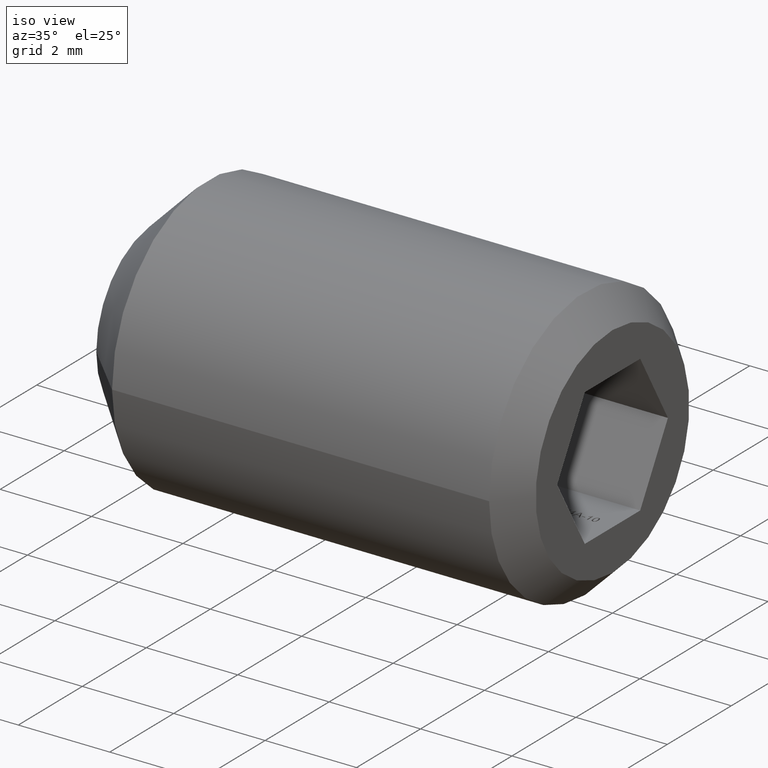
[diagram: clean part render]
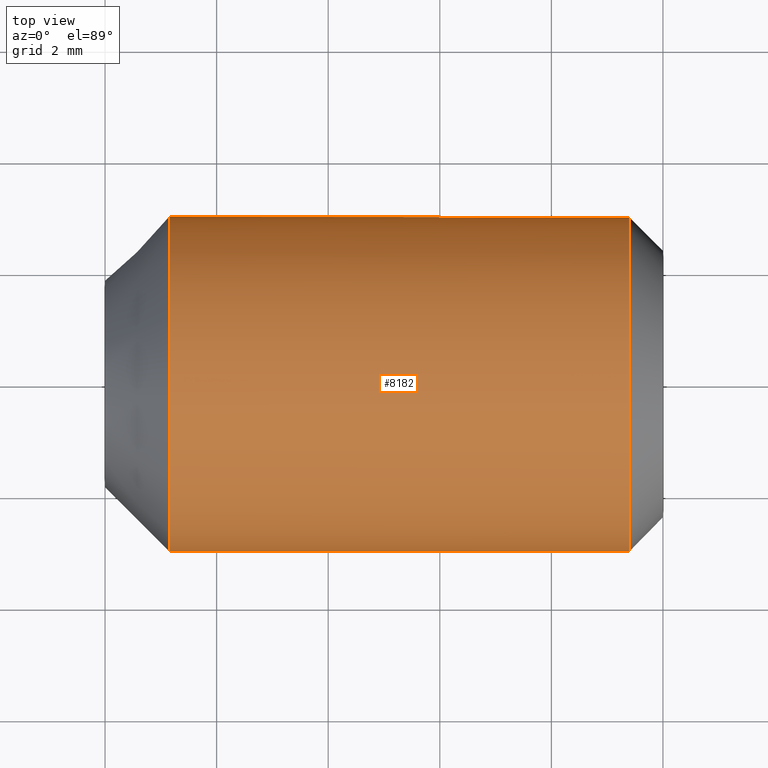
[diagram: tour spotlight — one face highlighted and labeled with its STEP entity id]
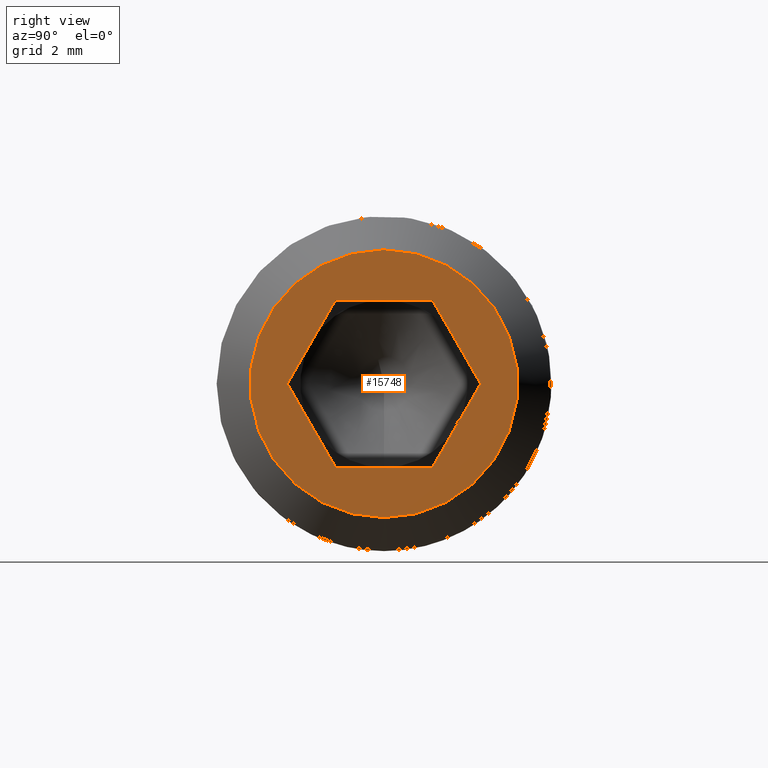
[diagram: tour spotlight — one face highlighted and labeled with its STEP entity id]
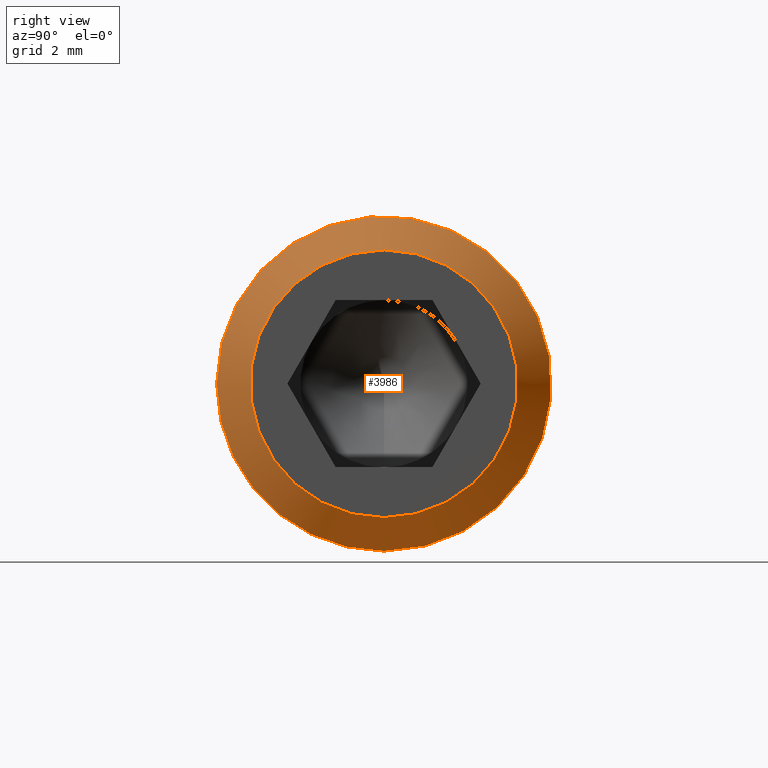
[diagram: tour spotlight — one face highlighted and labeled with its STEP entity id]
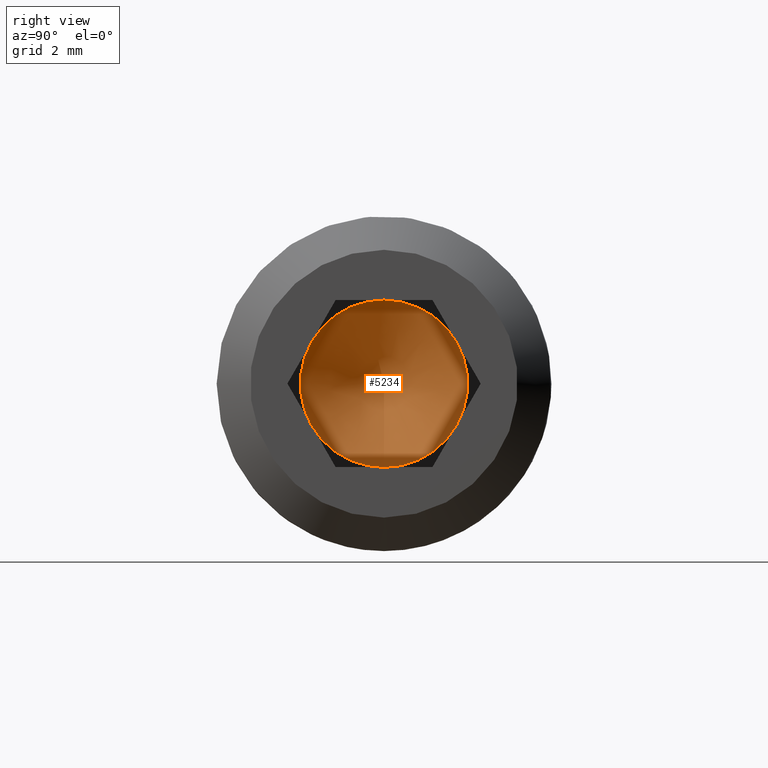
[diagram: tour spotlight — one face highlighted and labeled with its STEP entity id]
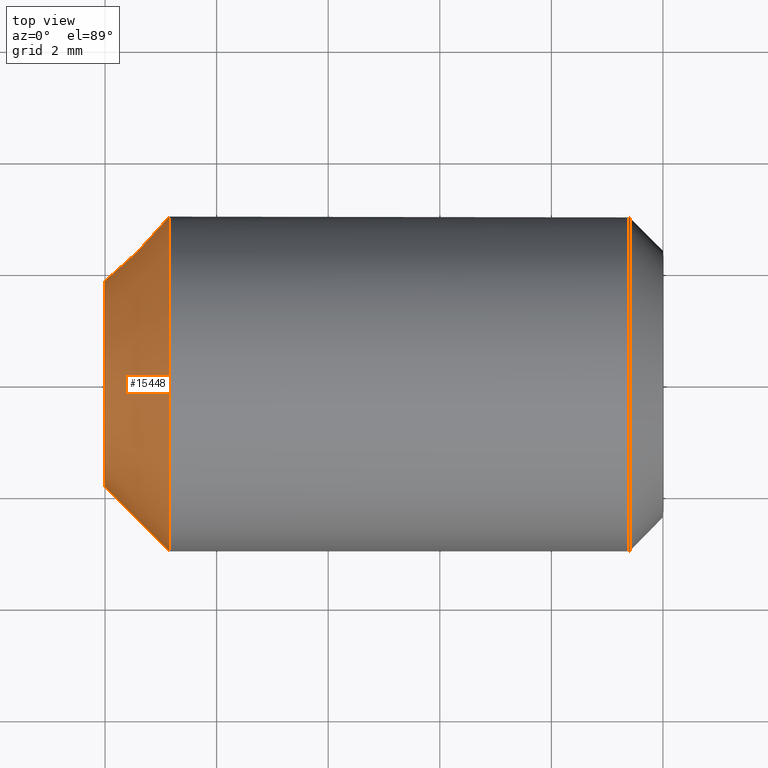
[diagram: tour spotlight — one face highlighted and labeled with its STEP entity id]
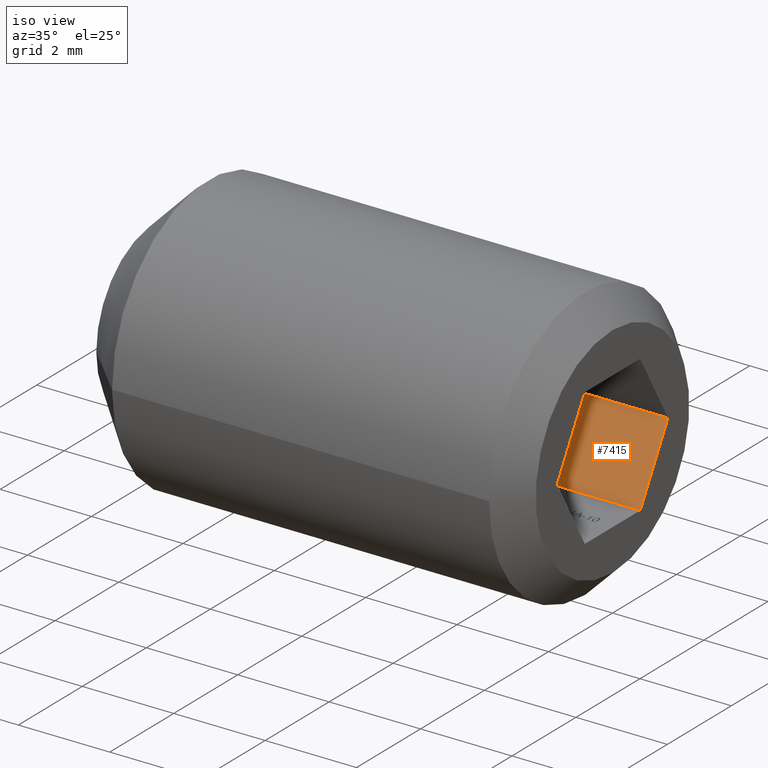
[diagram: tour spotlight — one face highlighted and labeled with its STEP entity id]
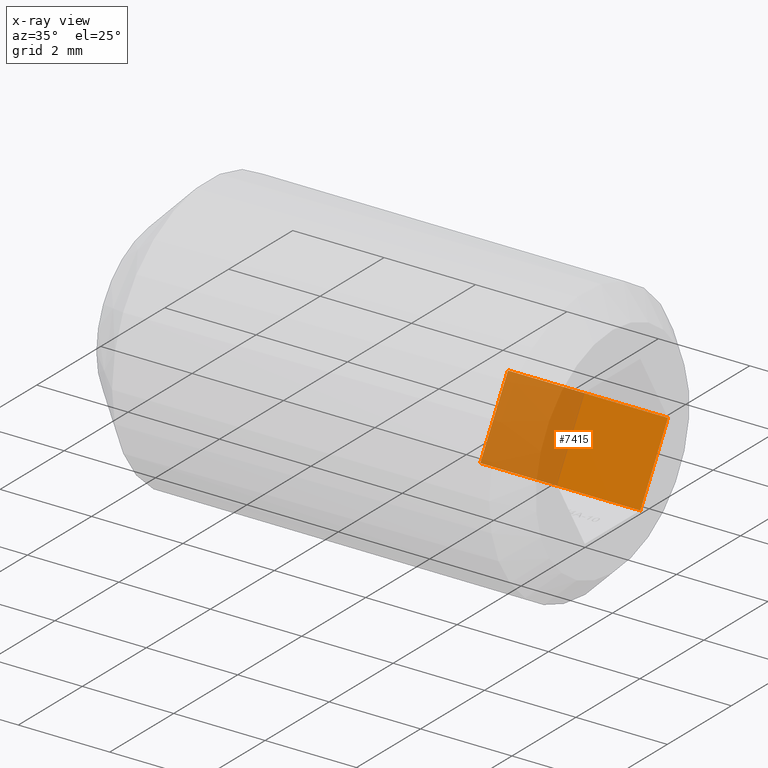
[diagram: x-ray of the same camera — body ghosted, this tour face saturated]
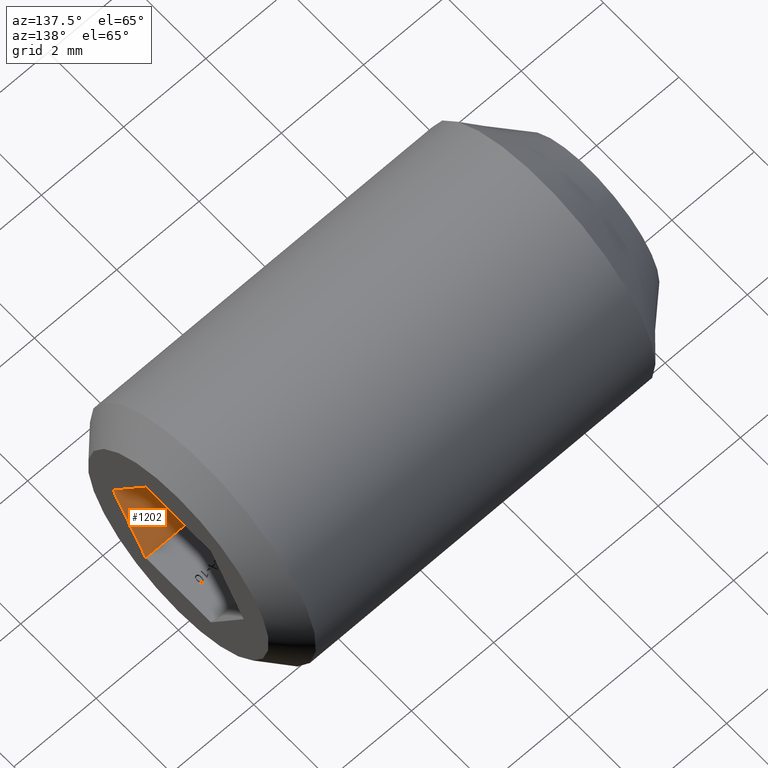
[diagram: tour spotlight — one face highlighted and labeled with its STEP entity id]
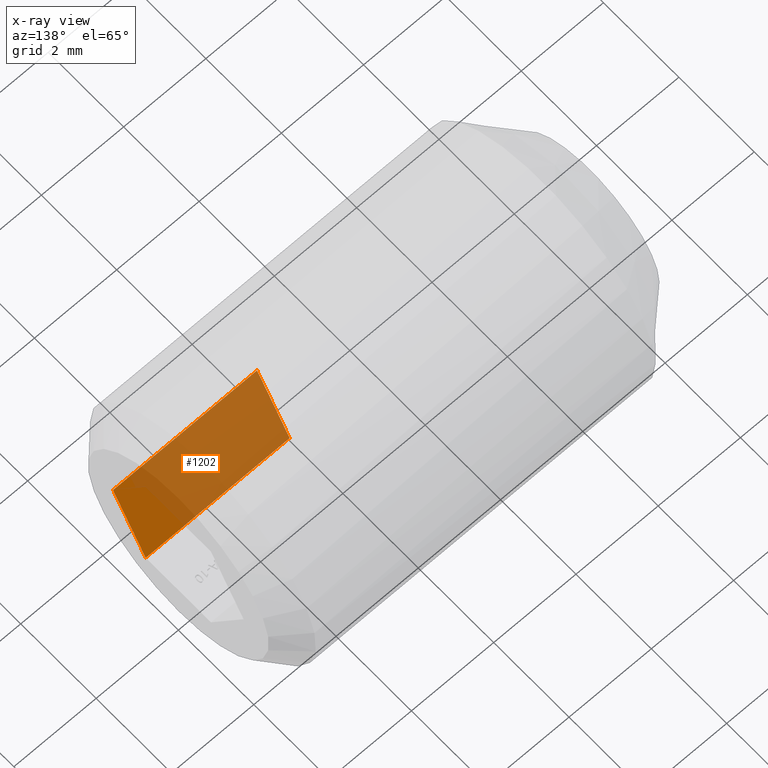
[diagram: x-ray of the same camera — body ghosted, this tour face saturated]
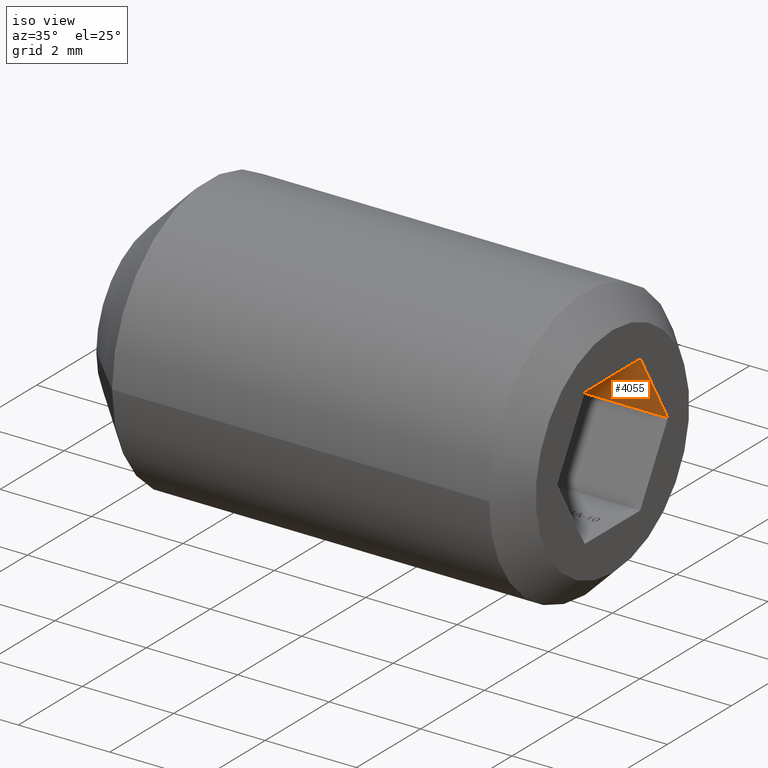
[diagram: tour spotlight — one face highlighted and labeled with its STEP entity id]
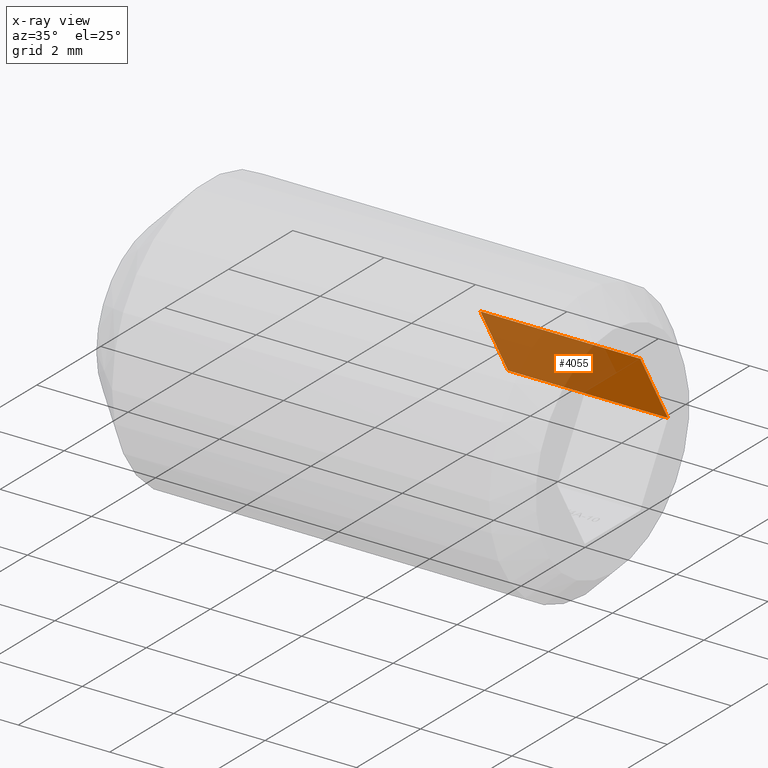
[diagram: x-ray of the same camera — body ghosted, this tour face saturated]
A machine part: a face-by-face anatomy tour. The part has 290 B-rep faces; the first image is the clean iso view, then the 8 largest visible faces are spotlighted one at a time (largest first), each with its STEP entity span.

Face 1 — top view, entity #8182. In plain terms, the highlighted cylindrical surface (bore or boss wall) has radius 3 mm, axis along (-1, -0, -0).
Definition (entity closure, byte-faithful):
#869 = DIRECTION ( 'NONE',  ( 0.0000000000000000000, 0.0000000000000000000, 1.000000000000000000 ) ) ;
#1406 = AXIS2_PLACEMENT_3D ( 'NONE', #16406, #15140, #869 ) ;
#2569 = CARTESIAN_POINT ( 'NONE',  ( 9.399999999999998600, 0.0000000000000000000, 0.0000000000000000000 ) ) ;
#3511 = FACE_OUTER_BOUND ( 'NONE', #14383, .T. ) ;
#3651 = CIRCLE ( 'NONE', #11947, 3.000000000000000400 ) ;
#4031 = EDGE_CURVE ( 'NONE', #8561, #8561, #14637, .T. ) ;
#4314 = CARTESIAN_POINT ( 'NONE',  ( 1.149999999999987900, -4.538988261647295100E-017, 0.0000000000000000000 ) ) ;
#4923 = FACE_OUTER_BOUND ( 'NONE', #16632, .T. ) ;
#5743 = EDGE_CURVE ( 'NONE', #10218, #10218, #3651, .T. ) ;
#6660 = CARTESIAN_POINT ( 'NONE',  ( 1.149999999999987700, -3.000000000000000400, 0.0000000000000000000 ) ) ;
#8182 = ADVANCED_FACE ( 'NONE', ( #4923, #3511 ), #9987, .T. ) ;
#8561 = VERTEX_POINT ( 'NONE', #6660 ) ;
#9987 = CYLINDRICAL_SURFACE ( 'NONE', #1406, 3.000000000000000400 ) ;
#10218 = VERTEX_POINT ( 'NONE', #10469 ) ;
#10469 = CARTESIAN_POINT ( 'NONE',  ( 9.399999999999998600, 0.0000000000000000000, -3.000000000000000400 ) ) ;
#11947 = AXIS2_PLACEMENT_3D ( 'NONE', #2569, #15529, #15694 ) ;
#12130 = ORIENTED_EDGE ( 'NONE', *, *, #4031, .F. ) ;
#12294 = DIRECTION ( 'NONE',  ( -1.000000000000000000, 3.946946314475950600E-017, -0.0000000000000000000 ) ) ;
#14383 = EDGE_LOOP ( 'NONE', ( #12130 ) ) ;
#14637 = CIRCLE ( 'NONE', #14885, 3.000000000000000400 ) ;
#14755 = DIRECTION ( 'NONE',  ( -7.228014483236694600E-017, -1.000000000000000000, 0.0000000000000000000 ) ) ;
#14885 = AXIS2_PLACEMENT_3D ( 'NONE', #4314, #12294, #14755 ) ;
#15140 = DIRECTION ( 'NONE',  ( -1.000000000000000000, -0.0000000000000000000, -0.0000000000000000000 ) ) ;
#15529 = DIRECTION ( 'NONE',  ( -1.000000000000000000, 0.0000000000000000000, 0.0000000000000000000 ) ) ;
#15694 = DIRECTION ( 'NONE',  ( 0.0000000000000000000, 0.0000000000000000000, -1.000000000000000000 ) ) ;
#16114 = ORIENTED_EDGE ( 'NONE', *, *, #5743, .T. ) ;
#16406 = CARTESIAN_POINT ( 'NONE',  ( 10.00000000000000000, 0.0000000000000000000, 0.0000000000000000000 ) ) ;
#16632 = EDGE_LOOP ( 'NONE', ( #16114 ) ) ;

Face 2 — right view, entity #15748. In plain terms, the highlighted planar face has unit normal (1, 0, 0).
Definition (entity closure, byte-faithful):
#200 = AXIS2_PLACEMENT_3D ( 'NONE', #2167, #13984, #7428 ) ;
#248 = CARTESIAN_POINT ( 'NONE',  ( 10.00000000000000000, -0.8660254037844399300, -1.499999999999999600 ) ) ;
#782 = DIRECTION ( 'NONE',  ( 0.0000000000000000000, -0.4999999999999998900, 0.8660254037844387100 ) ) ;
#1380 = LINE ( 'NONE', #11024, #12333 ) ;
#1824 = EDGE_CURVE ( 'NONE', #8392, #12020, #9368, .T. ) ;
#2167 = CARTESIAN_POINT ( 'NONE',  ( 10.00000000000000000, 0.0000000000000000000, 0.0000000000000000000 ) ) ;
#2492 = ORIENTED_EDGE ( 'NONE', *, *, #9394, .F. ) ;
#2545 = VECTOR ( 'NONE', #6670, 1000.000000000000200 ) ;
#2905 = VERTEX_POINT ( 'NONE', #10537 ) ;
#3194 = DIRECTION ( 'NONE',  ( 0.0000000000000000000, -1.000000000000000000, 0.0000000000000000000 ) ) ;
#3426 = LINE ( 'NONE', #6577, #13365 ) ;
#3845 = VECTOR ( 'NONE', #8824, 1000.000000000000100 ) ;
#4387 = VERTEX_POINT ( 'NONE', #248 ) ;
#4872 = VECTOR ( 'NONE', #10910, 1000.000000000000000 ) ;
#5024 = ORIENTED_EDGE ( 'NONE', *, *, #13210, .F. ) ;
#5373 = FACE_BOUND ( 'NONE', #8840, .T. ) ;
#5690 = DIRECTION ( 'NONE',  ( 1.000000000000000000, 0.0000000000000000000, 0.0000000000000000000 ) ) ;
#5978 = ORIENTED_EDGE ( 'NONE', *, *, #11412, .T. ) ;
#6577 = CARTESIAN_POINT ( 'NONE',  ( 10.00000000000000000, -0.8660254037844398200, 1.500000000000000000 ) ) ;
#6670 = DIRECTION ( 'NONE',  ( 0.0000000000000000000, 0.4999999999999998900, 0.8660254037844386000 ) ) ;
#7428 = DIRECTION ( 'NONE',  ( 0.0000000000000000000, 0.0000000000000000000, -1.000000000000000000 ) ) ;
#7482 = LINE ( 'NONE', #15750, #4872 ) ;
#7659 = LINE ( 'NONE', #11302, #3845 ) ;
#7722 = CARTESIAN_POINT ( 'NONE',  ( 10.00000000000000000, 0.8660254037844387100, -1.500000000000000000 ) ) ;
#8041 = CARTESIAN_POINT ( 'NONE',  ( 10.00000000000000000, 1.732050807568877400, 9.237883159404563300E-017 ) ) ;
#8392 = VERTEX_POINT ( 'NONE', #8041 ) ;
#8537 = CARTESIAN_POINT ( 'NONE',  ( 10.00000000000000000, 1.732050807568877400, 9.237883159404563300E-017 ) ) ;
#8824 = DIRECTION ( 'NONE',  ( 0.0000000000000000000, 0.4999999999999997200, -0.8660254037844387100 ) ) ;
#8840 = EDGE_LOOP ( 'NONE', ( #14143, #15159, #15616, #5024, #2492, #9239 ) ) ;
#9239 = ORIENTED_EDGE ( 'NONE', *, *, #10602, .F. ) ;
#9241 = DIRECTION ( 'NONE',  ( 0.0000000000000000000, -0.5000000000000001100, -0.8660254037844386000 ) ) ;
#9368 = LINE ( 'NONE', #8537, #11217 ) ;
#9394 = EDGE_CURVE ( 'NONE', #4387, #9677, #7482, .T. ) ;
#9677 = VERTEX_POINT ( 'NONE', #7722 ) ;
#10057 = VERTEX_POINT ( 'NONE', #16618 ) ;
#10302 = EDGE_CURVE ( 'NONE', #10057, #12960, #3426, .T. ) ;
#10537 = CARTESIAN_POINT ( 'NONE',  ( 10.00000000000000000, 0.0000000000000000000, -2.400000000000001200 ) ) ;
#10602 = EDGE_CURVE ( 'NONE', #12960, #4387, #7659, .T. ) ;
#10910 = DIRECTION ( 'NONE',  ( 0.0000000000000000000, 1.000000000000000000, -2.503857664561930400E-016 ) ) ;
#11024 = CARTESIAN_POINT ( 'NONE',  ( 10.00000000000000000, 0.8660254037844390400, 1.500000000000000000 ) ) ;
#11217 = VECTOR ( 'NONE', #782, 1000.000000000000000 ) ;
#11302 = CARTESIAN_POINT ( 'NONE',  ( 10.00000000000000000, -1.732050807568878300, 8.662204744352595200E-016 ) ) ;
#11412 = EDGE_CURVE ( 'NONE', #2905, #2905, #13559, .T. ) ;
#11477 = EDGE_CURVE ( 'NONE', #12020, #10057, #1380, .T. ) ;
#12020 = VERTEX_POINT ( 'NONE', #15783 ) ;
#12163 = CARTESIAN_POINT ( 'NONE',  ( 10.00000000000000000, 0.0000000000000000000, 0.0000000000000000000 ) ) ;
#12333 = VECTOR ( 'NONE', #3194, 1000.000000000000000 ) ;
#12562 = PLANE ( 'NONE',  #200 ) ;
#12659 = FACE_OUTER_BOUND ( 'NONE', #13561, .T. ) ;
#12960 = VERTEX_POINT ( 'NONE', #14208 ) ;
#13210 = EDGE_CURVE ( 'NONE', #9677, #8392, #15569, .T. ) ;
#13365 = VECTOR ( 'NONE', #9241, 1000.000000000000000 ) ;
#13559 = CIRCLE ( 'NONE', #16291, 2.400000000000001200 ) ;
#13561 = EDGE_LOOP ( 'NONE', ( #5978 ) ) ;
#13984 = DIRECTION ( 'NONE',  ( 1.000000000000000000, 0.0000000000000000000, 0.0000000000000000000 ) ) ;
#14143 = ORIENTED_EDGE ( 'NONE', *, *, #10302, .F. ) ;
#14208 = CARTESIAN_POINT ( 'NONE',  ( 10.00000000000000000, -1.732050807568878300, 9.757819552369539900E-016 ) ) ;
#14788 = DIRECTION ( 'NONE',  ( 0.0000000000000000000, 0.0000000000000000000, -1.000000000000000000 ) ) ;
#15159 = ORIENTED_EDGE ( 'NONE', *, *, #11477, .F. ) ;
#15331 = CARTESIAN_POINT ( 'NONE',  ( 10.00000000000000000, 0.8660254037844387100, -1.500000000000000000 ) ) ;
#15569 = LINE ( 'NONE', #15331, #2545 ) ;
#15616 = ORIENTED_EDGE ( 'NONE', *, *, #1824, .F. ) ;
#15748 = ADVANCED_FACE ( 'NONE', ( #5373, #12659 ), #12562, .T. ) ;
#15750 = CARTESIAN_POINT ( 'NONE',  ( 10.00000000000000000, -0.8660254037844399300, -1.499999999999999600 ) ) ;
#15783 = CARTESIAN_POINT ( 'NONE',  ( 10.00000000000000000, 0.8660254037844390400, 1.500000000000000000 ) ) ;
#16291 = AXIS2_PLACEMENT_3D ( 'NONE', #12163, #5690, #14788 ) ;
#16618 = CARTESIAN_POINT ( 'NONE',  ( 10.00000000000000000, -0.8660254037844398200, 1.500000000000000000 ) ) ;

Face 3 — right view, entity #3986. In plain terms, the highlighted conical surface has half-angle 45 deg.
Definition (entity closure, byte-faithful):
#498 = ORIENTED_EDGE ( 'NONE', *, *, #11412, .F. ) ;
#2569 = CARTESIAN_POINT ( 'NONE',  ( 9.399999999999998600, 0.0000000000000000000, 0.0000000000000000000 ) ) ;
#2905 = VERTEX_POINT ( 'NONE', #10537 ) ;
#3085 = CARTESIAN_POINT ( 'NONE',  ( 10.00000000000000000, 0.0000000000000000000, 0.0000000000000000000 ) ) ;
#3651 = CIRCLE ( 'NONE', #11947, 3.000000000000000400 ) ;
#3880 = CONICAL_SURFACE ( 'NONE', #8309, 2.400000000000001200, 0.7853981633974465000 ) ;
#3986 = ADVANCED_FACE ( 'NONE', ( #8708, #7896 ), #3880, .T. ) ;
#5518 = DIRECTION ( 'NONE',  ( 0.0000000000000000000, 0.0000000000000000000, 1.000000000000000000 ) ) ;
#5690 = DIRECTION ( 'NONE',  ( 1.000000000000000000, 0.0000000000000000000, 0.0000000000000000000 ) ) ;
#5743 = EDGE_CURVE ( 'NONE', #10218, #10218, #3651, .T. ) ;
#6805 = EDGE_LOOP ( 'NONE', ( #9450 ) ) ;
#7896 = FACE_BOUND ( 'NONE', #13259, .T. ) ;
#8117 = DIRECTION ( 'NONE',  ( -1.000000000000000000, 0.0000000000000000000, 0.0000000000000000000 ) ) ;
#8309 = AXIS2_PLACEMENT_3D ( 'NONE', #3085, #8117, #5518 ) ;
#8708 = FACE_OUTER_BOUND ( 'NONE', #6805, .T. ) ;
#9450 = ORIENTED_EDGE ( 'NONE', *, *, #5743, .F. ) ;
#10218 = VERTEX_POINT ( 'NONE', #10469 ) ;
#10469 = CARTESIAN_POINT ( 'NONE',  ( 9.399999999999998600, 0.0000000000000000000, -3.000000000000000400 ) ) ;
#10537 = CARTESIAN_POINT ( 'NONE',  ( 10.00000000000000000, 0.0000000000000000000, -2.400000000000001200 ) ) ;
#11412 = EDGE_CURVE ( 'NONE', #2905, #2905, #13559, .T. ) ;
#11947 = AXIS2_PLACEMENT_3D ( 'NONE', #2569, #15529, #15694 ) ;
#12163 = CARTESIAN_POINT ( 'NONE',  ( 10.00000000000000000, 0.0000000000000000000, 0.0000000000000000000 ) ) ;
#13259 = EDGE_LOOP ( 'NONE', ( #498 ) ) ;
#13559 = CIRCLE ( 'NONE', #16291, 2.400000000000001200 ) ;
#14788 = DIRECTION ( 'NONE',  ( 0.0000000000000000000, 0.0000000000000000000, -1.000000000000000000 ) ) ;
#15529 = DIRECTION ( 'NONE',  ( -1.000000000000000000, 0.0000000000000000000, 0.0000000000000000000 ) ) ;
#15694 = DIRECTION ( 'NONE',  ( 0.0000000000000000000, 0.0000000000000000000, -1.000000000000000000 ) ) ;
#16291 = AXIS2_PLACEMENT_3D ( 'NONE', #12163, #5690, #14788 ) ;

Face 4 — right view, entity #5234. In plain terms, the highlighted conical surface has half-angle 59 deg.
Definition (entity closure, byte-faithful):
#100 = VERTEX_POINT ( 'NONE', #8539 ) ;
#152 = ORIENTED_EDGE ( 'NONE', *, *, #1049, .T. ) ;
#282 = EDGE_LOOP ( 'NONE', ( #3161, #1786, #3121, #10118, #12741, #152 ) ) ;
#1049 = EDGE_CURVE ( 'NONE', #11099, #16628, #11002, .T. ) ;
#1083 = CIRCLE ( 'NONE', #7816, 1.499999999999999600 ) ;
#1786 = ORIENTED_EDGE ( 'NONE', *, *, #7435, .T. ) ;
#1803 = AXIS2_PLACEMENT_3D ( 'NONE', #7640, #9129, #6472 ) ;
#1906 = VERTEX_POINT ( 'NONE', #5021 ) ;
#2711 = DIRECTION ( 'NONE',  ( 1.000000000000000000, -0.0000000000000000000, -1.224646799147351200E-016 ) ) ;
#2780 = EDGE_CURVE ( 'NONE', #14139, #100, #9755, .T. ) ;
#3121 = ORIENTED_EDGE ( 'NONE', *, *, #2780, .T. ) ;
#3161 = ORIENTED_EDGE ( 'NONE', *, *, #7439, .T. ) ;
#3608 = DIRECTION ( 'NONE',  ( 1.000000000000000000, -0.0000000000000000000, -1.224646799147351200E-016 ) ) ;
#4045 = CARTESIAN_POINT ( 'NONE',  ( 6.500000000000000900, 1.299038105676658000, 0.7499999999999990000 ) ) ;
#4083 = DIRECTION ( 'NONE',  ( 1.000000000000000000, 0.0000000000000000000, 0.0000000000000000000 ) ) ;
#4714 = DIRECTION ( 'NONE',  ( 1.000000000000000000, 0.0000000000000000000, 0.0000000000000000000 ) ) ;
#5021 = CARTESIAN_POINT ( 'NONE',  ( 6.500000000000000900, 1.299038105676657800, -0.7500000000000006700 ) ) ;
#5234 = ADVANCED_FACE ( 'NONE', ( #8485 ), #8695, .F. ) ;
#5289 = EDGE_CURVE ( 'NONE', #100, #9621, #15030, .T. ) ;
#5619 = DIRECTION ( 'NONE',  ( 0.0000000000000000000, 0.0000000000000000000, -1.000000000000000000 ) ) ;
#6145 = CARTESIAN_POINT ( 'NONE',  ( 6.500000000000000900, 0.0000000000000000000, -7.955819008010142500E-016 ) ) ;
#6472 = DIRECTION ( 'NONE',  ( 0.0000000000000000000, 0.0000000000000000000, -1.000000000000000000 ) ) ;
#7435 = EDGE_CURVE ( 'NONE', #1906, #14139, #9894, .T. ) ;
#7439 = EDGE_CURVE ( 'NONE', #16628, #1906, #11338, .T. ) ;
#7475 = CARTESIAN_POINT ( 'NONE',  ( 6.500000000000000900, 0.0000000000000000000, -7.955819008010142500E-016 ) ) ;
#7640 = CARTESIAN_POINT ( 'NONE',  ( 6.500000000000000900, 0.0000000000000000000, -7.955819008010142500E-016 ) ) ;
#7778 = CARTESIAN_POINT ( 'NONE',  ( 6.500000000000000900, 0.0000000000000000000, -7.955819008010142500E-016 ) ) ;
#7816 = AXIS2_PLACEMENT_3D ( 'NONE', #7778, #4083, #10413 ) ;
#7864 = CARTESIAN_POINT ( 'NONE',  ( 6.500000000000000900, 0.0000000000000000000, -4.898587196589412800E-016 ) ) ;
#8485 = FACE_OUTER_BOUND ( 'NONE', #282, .T. ) ;
#8539 = CARTESIAN_POINT ( 'NONE',  ( 6.500000000000000900, 0.0000000000000000000, 1.499999999999999300 ) ) ;
#8618 = DIRECTION ( 'NONE',  ( 0.0000000000000000000, 0.0000000000000000000, -1.000000000000000000 ) ) ;
#8695 = CONICAL_SURFACE ( 'NONE', #9100, 1.499999999999999800, 1.029744258676650300 ) ;
#8898 = AXIS2_PLACEMENT_3D ( 'NONE', #6145, #16623, #10125 ) ;
#9100 = AXIS2_PLACEMENT_3D ( 'NONE', #7864, #2711, #15679 ) ;
#9129 = DIRECTION ( 'NONE',  ( 1.000000000000000000, 0.0000000000000000000, 0.0000000000000000000 ) ) ;
#9621 = VERTEX_POINT ( 'NONE', #11516 ) ;
#9755 = CIRCLE ( 'NONE', #11184, 1.499999999999999600 ) ;
#9784 = CARTESIAN_POINT ( 'NONE',  ( 6.500000000000000900, -3.755786496842894100E-016, -1.500000000000000200 ) ) ;
#9894 = CIRCLE ( 'NONE', #8898, 1.499999999999999600 ) ;
#10118 = ORIENTED_EDGE ( 'NONE', *, *, #5289, .T. ) ;
#10125 = DIRECTION ( 'NONE',  ( 0.0000000000000000000, 0.0000000000000000000, -1.000000000000000000 ) ) ;
#10413 = DIRECTION ( 'NONE',  ( 0.0000000000000000000, 0.0000000000000000000, -1.000000000000000000 ) ) ;
#11002 = CIRCLE ( 'NONE', #15214, 1.499999999999999600 ) ;
#11099 = VERTEX_POINT ( 'NONE', #15538 ) ;
#11184 = AXIS2_PLACEMENT_3D ( 'NONE', #15153, #11300, #14930 ) ;
#11300 = DIRECTION ( 'NONE',  ( 1.000000000000000000, 0.0000000000000000000, 0.0000000000000000000 ) ) ;
#11331 = CARTESIAN_POINT ( 'NONE',  ( 6.500000000000000900, 0.0000000000000000000, -4.898587196589412800E-016 ) ) ;
#11338 = CIRCLE ( 'NONE', #13026, 1.499999999999999800 ) ;
#11516 = CARTESIAN_POINT ( 'NONE',  ( 6.500000000000000900, -1.299038105676657800, 0.7499999999999993300 ) ) ;
#12741 = ORIENTED_EDGE ( 'NONE', *, *, #16873, .T. ) ;
#13026 = AXIS2_PLACEMENT_3D ( 'NONE', #11331, #3608, #8618 ) ;
#14139 = VERTEX_POINT ( 'NONE', #4045 ) ;
#14930 = DIRECTION ( 'NONE',  ( 0.0000000000000000000, 0.0000000000000000000, -1.000000000000000000 ) ) ;
#15030 = CIRCLE ( 'NONE', #1803, 1.499999999999999600 ) ;
#15153 = CARTESIAN_POINT ( 'NONE',  ( 6.500000000000000900, 0.0000000000000000000, -7.955819008010142500E-016 ) ) ;
#15214 = AXIS2_PLACEMENT_3D ( 'NONE', #7475, #4714, #5619 ) ;
#15538 = CARTESIAN_POINT ( 'NONE',  ( 6.500000000000000900, -1.299038105676658700, -0.7500000000000006700 ) ) ;
#15679 = DIRECTION ( 'NONE',  ( 0.0000000000000000000, 0.0000000000000000000, -1.000000000000000000 ) ) ;
#16623 = DIRECTION ( 'NONE',  ( 1.000000000000000000, 0.0000000000000000000, 0.0000000000000000000 ) ) ;
#16628 = VERTEX_POINT ( 'NONE', #9784 ) ;
#16873 = EDGE_CURVE ( 'NONE', #9621, #11099, #1083, .T. ) ;

Face 5 — top view, entity #15448. In plain terms, the highlighted conical surface has half-angle 45 deg.
Definition (entity closure, byte-faithful):
#1046 = DIRECTION ( 'NONE',  ( 3.946946314475950600E-017, 1.000000000000000000, 0.0000000000000000000 ) ) ;
#1522 = AXIS2_PLACEMENT_3D ( 'NONE', #3623, #14172, #1046 ) ;
#2331 = ORIENTED_EDGE ( 'NONE', *, *, #4031, .T. ) ;
#3623 = CARTESIAN_POINT ( 'NONE',  ( -5.464880483059479300E-017, 2.156958988166316400E-033, 0.0000000000000000000 ) ) ;
#3817 = DIRECTION ( 'NONE',  ( -3.946946314475950600E-017, -1.000000000000000000, 0.0000000000000000000 ) ) ;
#4031 = EDGE_CURVE ( 'NONE', #8561, #8561, #14637, .T. ) ;
#4192 = CARTESIAN_POINT ( 'NONE',  ( -1.276673116483998800E-016, -1.850000000000000100, 0.0000000000000000000 ) ) ;
#4314 = CARTESIAN_POINT ( 'NONE',  ( 1.149999999999987900, -4.538988261647295100E-017, 0.0000000000000000000 ) ) ;
#4964 = CONICAL_SURFACE ( 'NONE', #1522, 1.850000000000000100, 0.7853981633974538300 ) ;
#5165 = DIRECTION ( 'NONE',  ( -1.000000000000000000, 3.946946314475950600E-017, -0.0000000000000000000 ) ) ;
#6660 = CARTESIAN_POINT ( 'NONE',  ( 1.149999999999987700, -3.000000000000000400, 0.0000000000000000000 ) ) ;
#6837 = ORIENTED_EDGE ( 'NONE', *, *, #11819, .F. ) ;
#6951 = EDGE_LOOP ( 'NONE', ( #6837 ) ) ;
#8561 = VERTEX_POINT ( 'NONE', #6660 ) ;
#9003 = CARTESIAN_POINT ( 'NONE',  ( -5.464880483059479300E-017, 2.156958988166316400E-033, 0.0000000000000000000 ) ) ;
#9010 = EDGE_LOOP ( 'NONE', ( #2331 ) ) ;
#10445 = FACE_OUTER_BOUND ( 'NONE', #9010, .T. ) ;
#10533 = AXIS2_PLACEMENT_3D ( 'NONE', #9003, #5165, #3817 ) ;
#11738 = CIRCLE ( 'NONE', #10533, 1.850000000000000100 ) ;
#11819 = EDGE_CURVE ( 'NONE', #14084, #14084, #11738, .T. ) ;
#12294 = DIRECTION ( 'NONE',  ( -1.000000000000000000, 3.946946314475950600E-017, -0.0000000000000000000 ) ) ;
#13077 = FACE_BOUND ( 'NONE', #6951, .T. ) ;
#14084 = VERTEX_POINT ( 'NONE', #4192 ) ;
#14172 = DIRECTION ( 'NONE',  ( 1.000000000000000000, -3.946946314475950600E-017, 0.0000000000000000000 ) ) ;
#14637 = CIRCLE ( 'NONE', #14885, 3.000000000000000400 ) ;
#14755 = DIRECTION ( 'NONE',  ( -7.228014483236694600E-017, -1.000000000000000000, 0.0000000000000000000 ) ) ;
#14885 = AXIS2_PLACEMENT_3D ( 'NONE', #4314, #12294, #14755 ) ;
#15448 = ADVANCED_FACE ( 'NONE', ( #10445, #13077 ), #4964, .T. ) ;

Face 6 — iso view, entity #7415. An x-ray twin of the same camera follows (body ghosted, this face saturated) — the face is partly hidden behind the body. In plain terms, the highlighted planar face has unit normal (0, 0.866, -0.5).
Definition (entity closure, byte-faithful):
#133 = LINE ( 'NONE', #12127, #9667 ) ;
#746 = DIRECTION ( 'NONE',  ( 0.0000000000000000000, 0.4999999999999998900, 0.8660254037844386000 ) ) ;
#1250 = EDGE_CURVE ( 'NONE', #5058, #9677, #14661, .T. ) ;
#1456 = DIRECTION ( 'NONE',  ( 0.0000000000000000000, 0.4999999999999998900, 0.8660254037844386000 ) ) ;
#1906 = VERTEX_POINT ( 'NONE', #5021 ) ;
#2545 = VECTOR ( 'NONE', #6670, 1000.000000000000200 ) ;
#2732 = CARTESIAN_POINT ( 'NONE',  ( 6.500000000000000900, 0.8660254037844387100, -1.500000000000000200 ) ) ;
#3781 = EDGE_LOOP ( 'NONE', ( #8416, #10410, #6170, #4180, #12940 ) ) ;
#4180 = ORIENTED_EDGE ( 'NONE', *, *, #6703, .F. ) ;
#4388 = CARTESIAN_POINT ( 'NONE',  ( 6.500000000000000900, 0.8660254037844387100, -1.500000000000000200 ) ) ;
#4449 = VECTOR ( 'NONE', #8910, 1000.000000000000200 ) ;
#4623 = CARTESIAN_POINT ( 'NONE',  ( 6.500000000000000900, 0.8660254037844387100, -1.500000000000000200 ) ) ;
#5021 = CARTESIAN_POINT ( 'NONE',  ( 6.500000000000000900, 1.299038105676657800, -0.7500000000000006700 ) ) ;
#5042 = VECTOR ( 'NONE', #1456, 1000.000000000000200 ) ;
#5058 = VERTEX_POINT ( 'NONE', #4388 ) ;
#5222 = CARTESIAN_POINT ( 'NONE',  ( 6.500000000000000900, 0.8660254037844387100, -1.500000000000000200 ) ) ;
#5443 = DIRECTION ( 'NONE',  ( 1.000000000000000000, -0.0000000000000000000, 6.123031769111886300E-017 ) ) ;
#6170 = ORIENTED_EDGE ( 'NONE', *, *, #10195, .F. ) ;
#6670 = DIRECTION ( 'NONE',  ( 0.0000000000000000000, 0.4999999999999998900, 0.8660254037844386000 ) ) ;
#6703 = EDGE_CURVE ( 'NONE', #5058, #1906, #15412, .T. ) ;
#7415 = ADVANCED_FACE ( 'NONE', ( #10311 ), #9718, .F. ) ;
#7722 = CARTESIAN_POINT ( 'NONE',  ( 10.00000000000000000, 0.8660254037844387100, -1.500000000000000000 ) ) ;
#7868 = LINE ( 'NONE', #10443, #4449 ) ;
#8041 = CARTESIAN_POINT ( 'NONE',  ( 10.00000000000000000, 1.732050807568877400, 9.237883159404563300E-017 ) ) ;
#8342 = DIRECTION ( 'NONE',  ( 3.061515884555943800E-017, 0.8660254037844387100, -0.4999999999999999400 ) ) ;
#8392 = VERTEX_POINT ( 'NONE', #8041 ) ;
#8416 = ORIENTED_EDGE ( 'NONE', *, *, #13210, .T. ) ;
#8688 = CARTESIAN_POINT ( 'NONE',  ( 6.500000000000000900, 1.732050807568877400, -1.219272803248704100E-016 ) ) ;
#8910 = DIRECTION ( 'NONE',  ( 0.0000000000000000000, 0.4999999999999998900, 0.8660254037844386000 ) ) ;
#9667 = VECTOR ( 'NONE', #5443, 1000.000000000000000 ) ;
#9677 = VERTEX_POINT ( 'NONE', #7722 ) ;
#9718 = PLANE ( 'NONE',  #16770 ) ;
#10195 = EDGE_CURVE ( 'NONE', #1906, #15651, #7868, .T. ) ;
#10311 = FACE_OUTER_BOUND ( 'NONE', #3781, .T. ) ;
#10410 = ORIENTED_EDGE ( 'NONE', *, *, #12016, .F. ) ;
#10443 = CARTESIAN_POINT ( 'NONE',  ( 6.500000000000000900, 0.8660254037844387100, -1.500000000000000200 ) ) ;
#11209 = VECTOR ( 'NONE', #11832, 1000.000000000000000 ) ;
#11832 = DIRECTION ( 'NONE',  ( 1.000000000000000000, -0.0000000000000000000, 6.123031769111886300E-017 ) ) ;
#12016 = EDGE_CURVE ( 'NONE', #15651, #8392, #133, .T. ) ;
#12127 = CARTESIAN_POINT ( 'NONE',  ( 6.500000000000000900, 1.732050807568877400, -1.219272803248704100E-016 ) ) ;
#12940 = ORIENTED_EDGE ( 'NONE', *, *, #1250, .T. ) ;
#13210 = EDGE_CURVE ( 'NONE', #9677, #8392, #15569, .T. ) ;
#14661 = LINE ( 'NONE', #2732, #11209 ) ;
#15331 = CARTESIAN_POINT ( 'NONE',  ( 10.00000000000000000, 0.8660254037844387100, -1.500000000000000000 ) ) ;
#15412 = LINE ( 'NONE', #5222, #5042 ) ;
#15569 = LINE ( 'NONE', #15331, #2545 ) ;
#15651 = VERTEX_POINT ( 'NONE', #8688 ) ;
#16770 = AXIS2_PLACEMENT_3D ( 'NONE', #4623, #8342, #746 ) ;

Face 7 — auxiliary view, entity #1202. An x-ray twin of the same camera follows (body ghosted, this face saturated) — the face is partly hidden behind the body. In plain terms, the highlighted planar face has unit normal (0, -0.866, -0.5).
Definition (entity closure, byte-faithful):
#42 = ORIENTED_EDGE ( 'NONE', *, *, #10602, .T. ) ;
#248 = CARTESIAN_POINT ( 'NONE',  ( 10.00000000000000000, -0.8660254037844399300, -1.499999999999999600 ) ) ;
#1202 = ADVANCED_FACE ( 'NONE', ( #16518 ), #4183, .F. ) ;
#1539 = CARTESIAN_POINT ( 'NONE',  ( 6.500000000000000900, -1.732050807568878300, 6.519143625163435000E-016 ) ) ;
#1714 = VERTEX_POINT ( 'NONE', #16269 ) ;
#2391 = VECTOR ( 'NONE', #3293, 1000.000000000000100 ) ;
#2590 = LINE ( 'NONE', #4462, #12945 ) ;
#2961 = DIRECTION ( 'NONE',  ( 0.0000000000000000000, 0.4999999999999997200, -0.8660254037844388200 ) ) ;
#2974 = CARTESIAN_POINT ( 'NONE',  ( 6.500000000000000900, -1.732050807568878300, 6.519143625163435000E-016 ) ) ;
#3185 = LINE ( 'NONE', #6620, #4816 ) ;
#3293 = DIRECTION ( 'NONE',  ( 0.0000000000000000000, 0.4999999999999997200, -0.8660254037844387100 ) ) ;
#3845 = VECTOR ( 'NONE', #8824, 1000.000000000000100 ) ;
#4183 = PLANE ( 'NONE',  #8525 ) ;
#4280 = VERTEX_POINT ( 'NONE', #2974 ) ;
#4387 = VERTEX_POINT ( 'NONE', #248 ) ;
#4462 = CARTESIAN_POINT ( 'NONE',  ( 6.500000000000000900, -0.8660254037844399300, -1.499999999999999800 ) ) ;
#4816 = VECTOR ( 'NONE', #14245, 1000.000000000000100 ) ;
#5731 = CARTESIAN_POINT ( 'NONE',  ( 6.500000000000000900, -1.732050807568878300, 6.519143625163435000E-016 ) ) ;
#6157 = CARTESIAN_POINT ( 'NONE',  ( 6.500000000000000900, -1.732050807568878300, 6.519143625163435000E-016 ) ) ;
#6512 = EDGE_CURVE ( 'NONE', #4280, #11099, #9913, .T. ) ;
#6620 = CARTESIAN_POINT ( 'NONE',  ( 6.500000000000000900, -1.732050807568878300, 6.519143625163435000E-016 ) ) ;
#6630 = VECTOR ( 'NONE', #16523, 1000.000000000000000 ) ;
#7312 = EDGE_CURVE ( 'NONE', #1714, #4387, #2590, .T. ) ;
#7622 = ORIENTED_EDGE ( 'NONE', *, *, #12274, .T. ) ;
#7659 = LINE ( 'NONE', #11302, #3845 ) ;
#7805 = ORIENTED_EDGE ( 'NONE', *, *, #6512, .F. ) ;
#8525 = AXIS2_PLACEMENT_3D ( 'NONE', #1539, #13290, #2961 ) ;
#8824 = DIRECTION ( 'NONE',  ( 0.0000000000000000000, 0.4999999999999997200, -0.8660254037844387100 ) ) ;
#9387 = ORIENTED_EDGE ( 'NONE', *, *, #7312, .F. ) ;
#9913 = LINE ( 'NONE', #5731, #2391 ) ;
#10602 = EDGE_CURVE ( 'NONE', #12960, #4387, #7659, .T. ) ;
#10984 = DIRECTION ( 'NONE',  ( 1.000000000000000000, -0.0000000000000000000, 6.123031769111886300E-017 ) ) ;
#11099 = VERTEX_POINT ( 'NONE', #15538 ) ;
#11302 = CARTESIAN_POINT ( 'NONE',  ( 10.00000000000000000, -1.732050807568878300, 8.662204744352595200E-016 ) ) ;
#11921 = EDGE_CURVE ( 'NONE', #11099, #1714, #3185, .T. ) ;
#12274 = EDGE_CURVE ( 'NONE', #4280, #12960, #16422, .T. ) ;
#12685 = ORIENTED_EDGE ( 'NONE', *, *, #11921, .F. ) ;
#12945 = VECTOR ( 'NONE', #10984, 1000.000000000000000 ) ;
#12960 = VERTEX_POINT ( 'NONE', #14208 ) ;
#13290 = DIRECTION ( 'NONE',  ( 3.061515884555941900E-017, -0.8660254037844388200, -0.4999999999999997200 ) ) ;
#14208 = CARTESIAN_POINT ( 'NONE',  ( 10.00000000000000000, -1.732050807568878300, 9.757819552369539900E-016 ) ) ;
#14245 = DIRECTION ( 'NONE',  ( 0.0000000000000000000, 0.4999999999999997200, -0.8660254037844387100 ) ) ;
#14722 = EDGE_LOOP ( 'NONE', ( #42, #9387, #12685, #7805, #7622 ) ) ;
#15538 = CARTESIAN_POINT ( 'NONE',  ( 6.500000000000000900, -1.299038105676658700, -0.7500000000000006700 ) ) ;
#16269 = CARTESIAN_POINT ( 'NONE',  ( 6.500000000000000900, -0.8660254037844399300, -1.499999999999999800 ) ) ;
#16422 = LINE ( 'NONE', #6157, #6630 ) ;
#16518 = FACE_OUTER_BOUND ( 'NONE', #14722, .T. ) ;
#16523 = DIRECTION ( 'NONE',  ( 1.000000000000000000, -0.0000000000000000000, 6.123031769111886300E-017 ) ) ;

Face 8 — iso view, entity #4055. An x-ray twin of the same camera follows (body ghosted, this face saturated) — the face is partly hidden behind the body. In plain terms, the highlighted planar face has unit normal (-0, 0.866, 0.5).
Definition (entity closure, byte-faithful):
#133 = LINE ( 'NONE', #12127, #9667 ) ;
#236 = ORIENTED_EDGE ( 'NONE', *, *, #4125, .F. ) ;
#421 = DIRECTION ( 'NONE',  ( -3.061515884555942500E-017, 0.8660254037844387100, 0.4999999999999998900 ) ) ;
#782 = DIRECTION ( 'NONE',  ( 0.0000000000000000000, -0.4999999999999998900, 0.8660254037844387100 ) ) ;
#1824 = EDGE_CURVE ( 'NONE', #8392, #12020, #9368, .T. ) ;
#1923 = ORIENTED_EDGE ( 'NONE', *, *, #6798, .F. ) ;
#2012 = CARTESIAN_POINT ( 'NONE',  ( 6.500000000000000900, 1.732050807568877400, -1.219272803248704100E-016 ) ) ;
#2122 = DIRECTION ( 'NONE',  ( 0.0000000000000000000, -0.4999999999999998900, 0.8660254037844387100 ) ) ;
#2359 = AXIS2_PLACEMENT_3D ( 'NONE', #3165, #421, #9615 ) ;
#3165 = CARTESIAN_POINT ( 'NONE',  ( 6.500000000000000900, 1.732050807568877400, -1.219272803248704100E-016 ) ) ;
#3554 = VECTOR ( 'NONE', #16578, 1000.000000000000000 ) ;
#3925 = CARTESIAN_POINT ( 'NONE',  ( 6.500000000000000900, 1.732050807568877400, -1.219272803248704100E-016 ) ) ;
#4045 = CARTESIAN_POINT ( 'NONE',  ( 6.500000000000000900, 1.299038105676658000, 0.7499999999999990000 ) ) ;
#4055 = ADVANCED_FACE ( 'NONE', ( #11790 ), #8183, .F. ) ;
#4125 = EDGE_CURVE ( 'NONE', #14139, #14785, #11393, .T. ) ;
#4762 = LINE ( 'NONE', #10007, #3554 ) ;
#5241 = LINE ( 'NONE', #3925, #7238 ) ;
#5443 = DIRECTION ( 'NONE',  ( 1.000000000000000000, -0.0000000000000000000, 6.123031769111886300E-017 ) ) ;
#6798 = EDGE_CURVE ( 'NONE', #15651, #14139, #5241, .T. ) ;
#7204 = EDGE_LOOP ( 'NONE', ( #10843, #14198, #236, #1923, #12734 ) ) ;
#7238 = VECTOR ( 'NONE', #14351, 1000.000000000000000 ) ;
#8041 = CARTESIAN_POINT ( 'NONE',  ( 10.00000000000000000, 1.732050807568877400, 9.237883159404563300E-017 ) ) ;
#8183 = PLANE ( 'NONE',  #2359 ) ;
#8392 = VERTEX_POINT ( 'NONE', #8041 ) ;
#8537 = CARTESIAN_POINT ( 'NONE',  ( 10.00000000000000000, 1.732050807568877400, 9.237883159404563300E-017 ) ) ;
#8688 = CARTESIAN_POINT ( 'NONE',  ( 6.500000000000000900, 1.732050807568877400, -1.219272803248704100E-016 ) ) ;
#9368 = LINE ( 'NONE', #8537, #11217 ) ;
#9615 = DIRECTION ( 'NONE',  ( 0.0000000000000000000, -0.4999999999999998900, 0.8660254037844387100 ) ) ;
#9667 = VECTOR ( 'NONE', #5443, 1000.000000000000000 ) ;
#10007 = CARTESIAN_POINT ( 'NONE',  ( 6.500000000000000900, 0.8660254037844390400, 1.499999999999999800 ) ) ;
#10764 = VECTOR ( 'NONE', #2122, 1000.000000000000000 ) ;
#10843 = ORIENTED_EDGE ( 'NONE', *, *, #1824, .T. ) ;
#11217 = VECTOR ( 'NONE', #782, 1000.000000000000000 ) ;
#11393 = LINE ( 'NONE', #2012, #10764 ) ;
#11790 = FACE_OUTER_BOUND ( 'NONE', #7204, .T. ) ;
#12016 = EDGE_CURVE ( 'NONE', #15651, #8392, #133, .T. ) ;
#12020 = VERTEX_POINT ( 'NONE', #15783 ) ;
#12127 = CARTESIAN_POINT ( 'NONE',  ( 6.500000000000000900, 1.732050807568877400, -1.219272803248704100E-016 ) ) ;
#12734 = ORIENTED_EDGE ( 'NONE', *, *, #12016, .T. ) ;
#14139 = VERTEX_POINT ( 'NONE', #4045 ) ;
#14198 = ORIENTED_EDGE ( 'NONE', *, *, #15414, .F. ) ;
#14351 = DIRECTION ( 'NONE',  ( 0.0000000000000000000, -0.4999999999999998900, 0.8660254037844387100 ) ) ;
#14785 = VERTEX_POINT ( 'NONE', #16056 ) ;
#15414 = EDGE_CURVE ( 'NONE', #14785, #12020, #4762, .T. ) ;
#15651 = VERTEX_POINT ( 'NONE', #8688 ) ;
#15783 = CARTESIAN_POINT ( 'NONE',  ( 10.00000000000000000, 0.8660254037844390400, 1.500000000000000000 ) ) ;
#16056 = CARTESIAN_POINT ( 'NONE',  ( 6.500000000000000900, 0.8660254037844390400, 1.499999999999999800 ) ) ;
#16578 = DIRECTION ( 'NONE',  ( 1.000000000000000000, -0.0000000000000000000, 6.123031769111886300E-017 ) ) ;